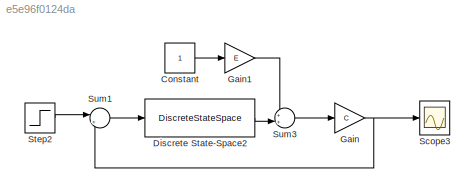
MODEL slx_e5e96f0124da
KIND model
CONFIG AbsTol = auto
CONFIG EnableMultiTasking = off
CONFIG FixedStep = auto
CONFIG MaxStep = auto
CONFIG MinStep = auto
CONFIG RelTol = 1e-3
CONFIG SampleTimeConstraint = Unconstrained
CONFIG SolverName = VariableStepAuto
CONFIG StartTime = 0.0
CONFIG StopTime = 10.0
BLOCK [Constant] Constant
  SampleTime = Ts
BLOCK [DiscreteStateSpace] Discrete State-Space2
  A = A
  B = B
  C = eye(4)
  D = zeros(4,1)
  InitialCondition = x0
  SampleTime = Ts
BLOCK [Gain] Gain
  Gain = C
  Multiplication = Matrix(K*u)
BLOCK [Gain] Gain1
  Gain = E
  Multiplication = Matrix(K*u)
BLOCK [Scope] Scope3
  Floating = off
  NumInputPorts = 1
  ScopeSpecificationString = Simulink.scopes.TimeScopeBlockCfg('CurrentConfiguration', extmgr.ConfigurationSet(extmgr.Configuration('Core','General UI',true),extmgr.Configuration('Core','Source UI',true),extmgr.Configuration('Sources','WiredSimulink',true,'DataLoggingVariableName','ScopeData2'),extmgr.Configuration('Visuals','Time Domain',true,'SerializedDisplays',{struct('MinYLimReal','-0.88579','MaxYLimReal','1.97213','YLab...<+1424ch>
BLOCK [Step] Step2
  SampleTime = Ts
BLOCK [Sum] Sum1
  Inputs = |+-
BLOCK [Sum] Sum3
  Inputs = ++|
LINE Constant:1 -> Gain1:1
LINE Discrete State-Space2:1 -> Sum3:2
LINE Gain1:1 -> Sum3:1
NET Gain:1 -> Scope3:1, Sum1:2
LINE Step2:1 -> Sum1:1
LINE Sum1:1 -> Discrete State-Space2:1
LINE Sum3:1 -> Gain:1
note: NET lines group one-source signal fan-out (src -> all destinations, sorted); 1:1 wires keep LINE
